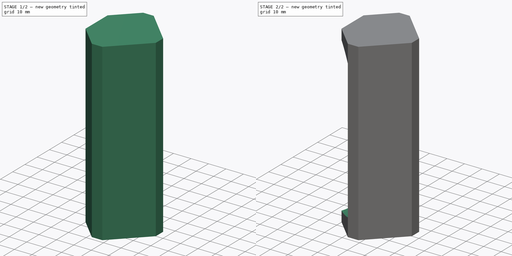
[diagram: build sequence overview — one tinted view per stage of 2, left to right]
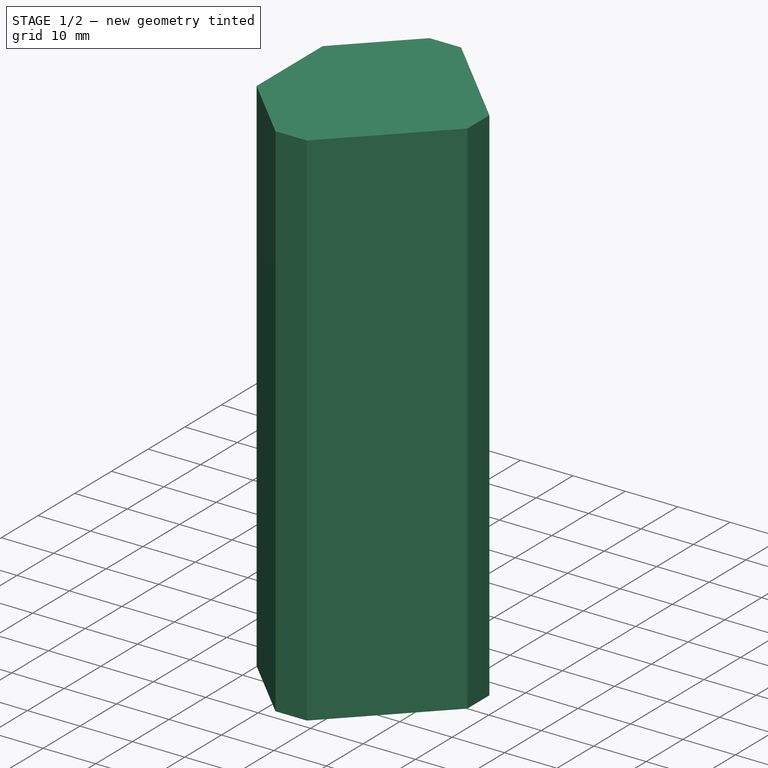
[diagram: stage 1 of 2 — iso view after this stage's code; geometry added in this stage tinted green]
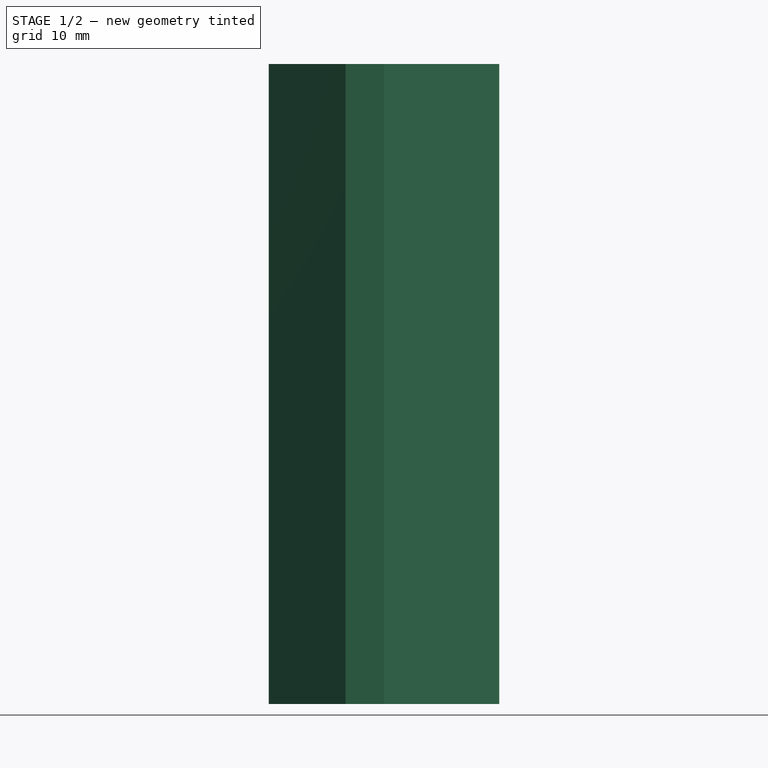
[diagram: stage 1 of 2 — front view after this stage's code; geometry added in this stage tinted green]
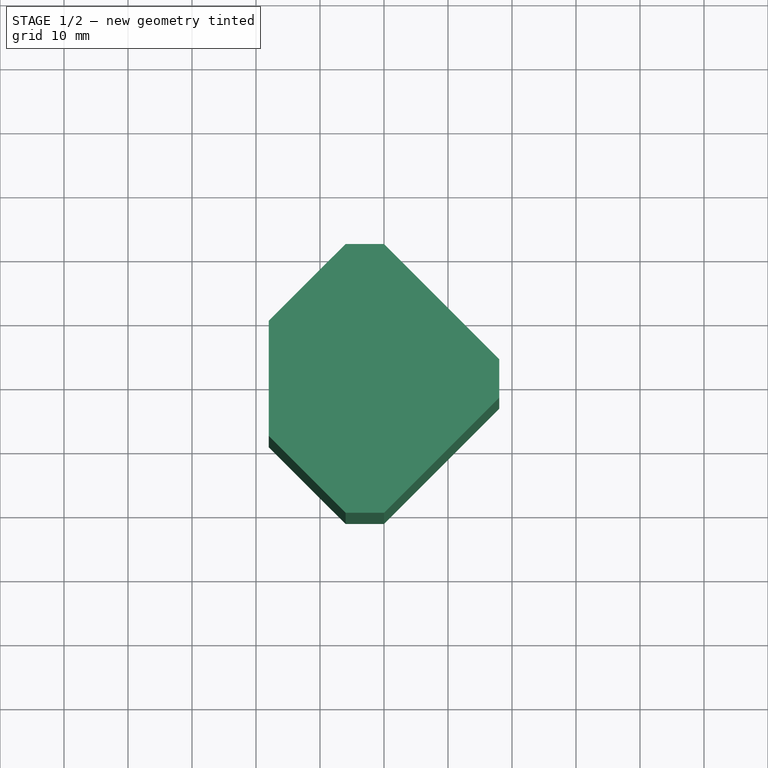
[diagram: stage 1 of 2 — top view after this stage's code; geometry added in this stage tinted green]
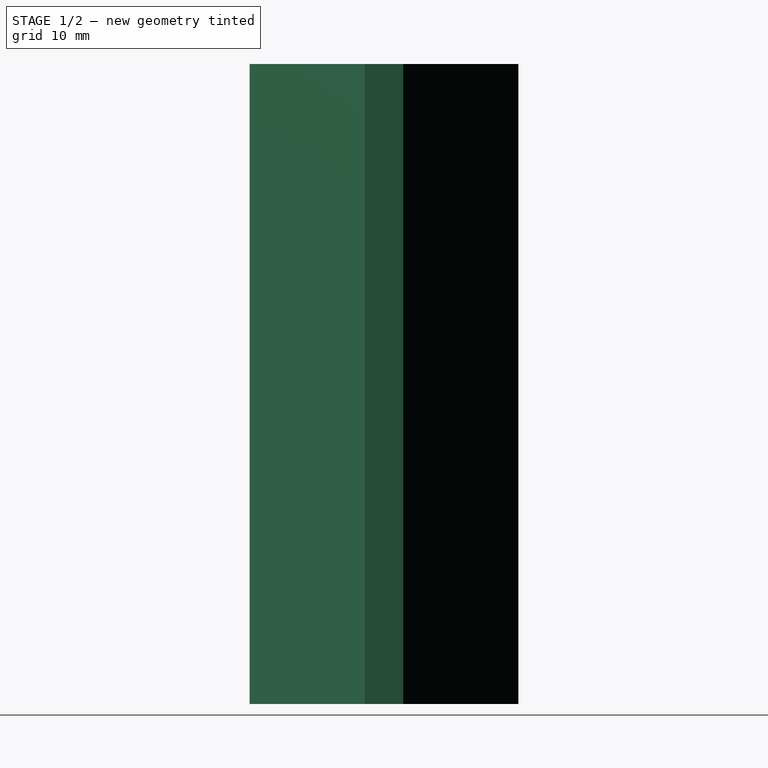
[diagram: stage 1 of 2 — right view after this stage's code; geometry added in this stage tinted green]
FCSTD DOCUMENT  (FreeCAD 0.18.4R)
Label: part18
License: All rights reserved
LicenseURL: http://en.wikipedia.org/wiki/All_rights_reserved
objects: Sketcher::SketchObject×2, PartDesign::Pad×1, PartDesign::Hole×1, PartDesign::Body×1
note: 7 computed .brp shape members not serialized (recipe doc carries the construction recipe); baked Part::Feature solids carry a one-line shape summary decoded from their .brp

FEATURE [Sketcher::SketchObject] Sketch
  MapMode = 5
  Support = -> [XY_Plane]
  sketch-geometry (8):
    g0: LineSegment StartX=-18 StartY=9 StartZ=0 EndX=-18 EndY=-9 EndZ=0
    g1: LineSegment StartX=-18 StartY=-9 StartZ=0 EndX=-6 EndY=-21 EndZ=0
    g2: LineSegment StartX=-6 StartY=-21 StartZ=0 EndX=0 EndY=-21 EndZ=0
    g3: LineSegment StartX=0 StartY=-21 StartZ=0 EndX=18 EndY=-3 EndZ=0
    g4: LineSegment StartX=18 StartY=-3 StartZ=0 EndX=18 EndY=3 EndZ=0
    g5: LineSegment StartX=18 StartY=3 StartZ=0 EndX=0 EndY=21 EndZ=0
    g6: LineSegment StartX=0 StartY=21 StartZ=0 EndX=-6 EndY=21 EndZ=0
    g7: LineSegment StartX=-6 StartY=21 StartZ=0 EndX=-18 EndY=9 EndZ=0
  constraints (20):
    c: Coincident(g0,g1)
    c: Coincident(g1,g2)
    c: Coincident(g2,g3)
    c: Coincident(g3,g4)
    c: Coincident(g4,g5)
    c: Coincident(g5,g6)
    c: Coincident(g6,g7)
    c: Coincident(g7,g0)
    c: Horizontal(g2)
    c: Symmetric(g0,g0,g-1)
    c: Symmetric(g4,g3,g-1)
    c: Symmetric(g5,g2,g-1)
    c: Symmetric(g6,g1,g-1)
    c: PointOnObject(g5,g-2)
    c: Equal(g6,g4)
    c: Angle(g5,g4) = 2.35619
    c: Angle(g0,g7) = 2.35619
    c: DistanceY(g4,g4) = 6
    c: DistanceY(g0,g0) = 18
    c: DistanceY(g2,g5) = 42
FEATURE [PartDesign::Pad] Pad
  Length = 100
  Length2 = 100
  Profile = -> Sketch
  Reversed = true
  Type = 0
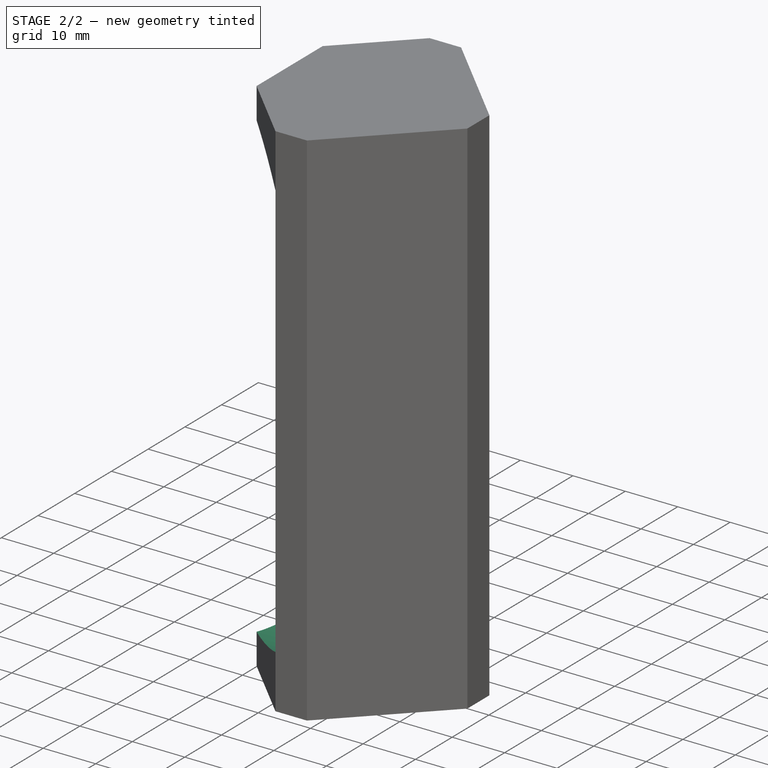
[diagram: stage 2 of 2 — iso view after this stage's code; geometry added in this stage tinted green]
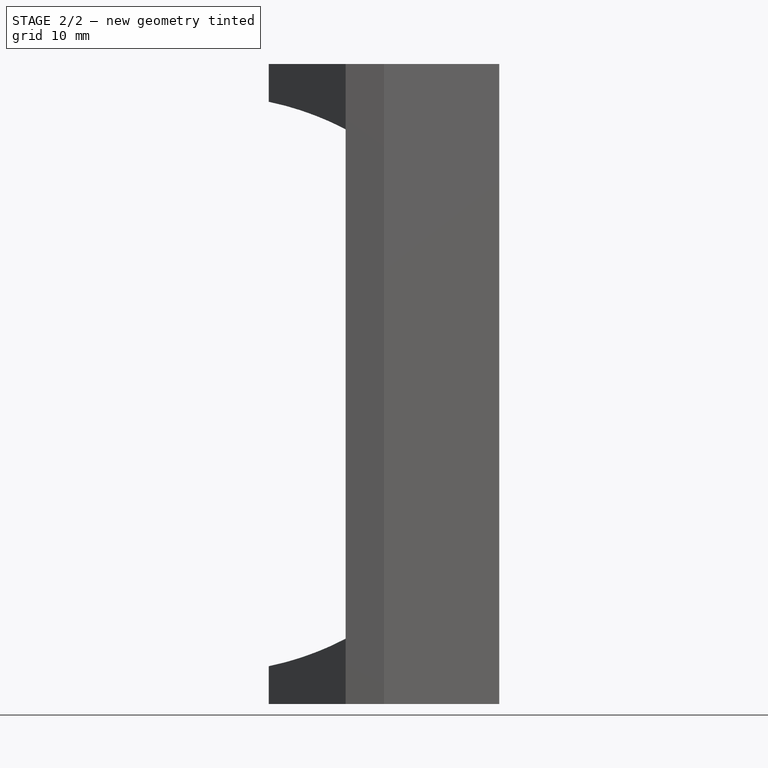
[diagram: stage 2 of 2 — front view after this stage's code; geometry added in this stage tinted green]
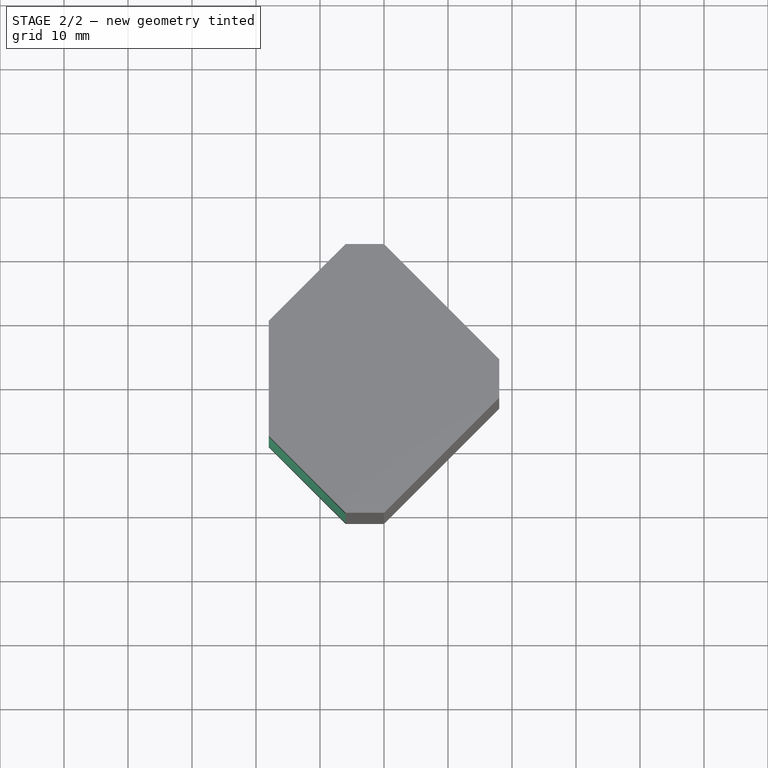
[diagram: stage 2 of 2 — top view after this stage's code; geometry added in this stage tinted green]
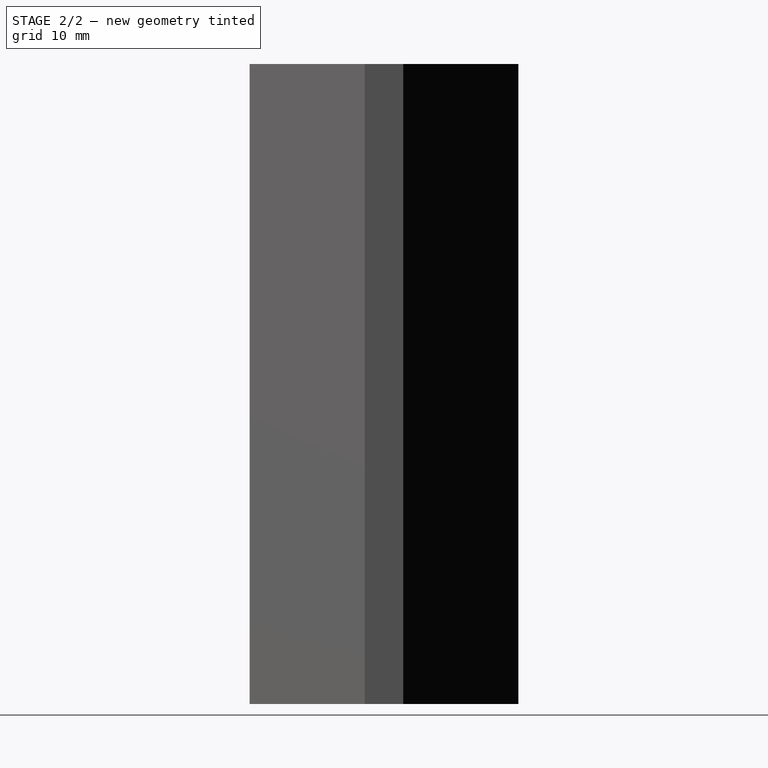
[diagram: stage 2 of 2 — right view after this stage's code; geometry added in this stage tinted green]
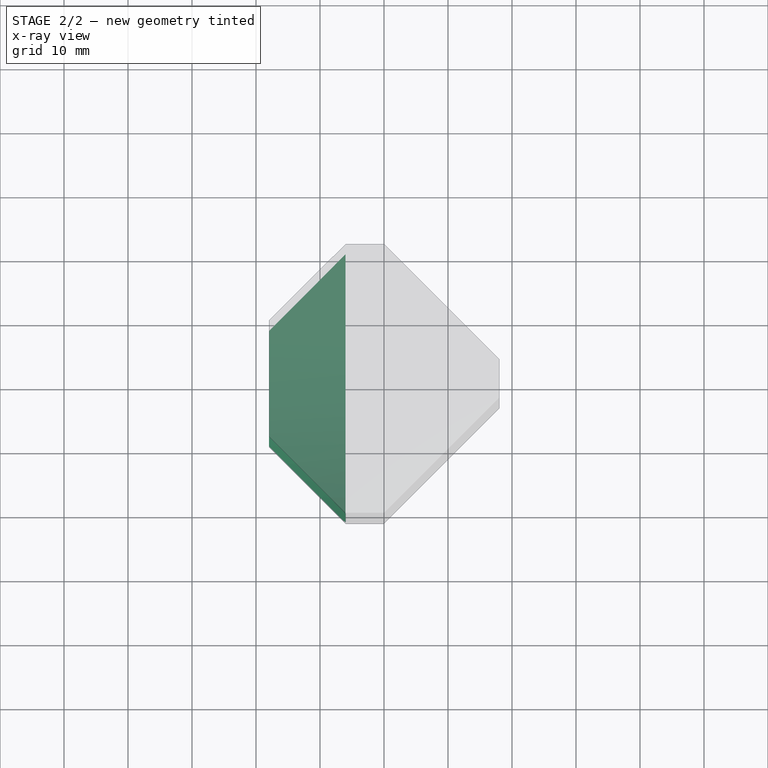
[diagram: stage 2 of 2 — x-ray composite at the top view; earlier geometry ghosted, this stage's added geometry solid]
FEATURE [Sketcher::SketchObject] Sketch001
  MapMode = 5
  Placement = pos=(-18,0,0) rot=(0.57735,-0.57735,-0.57735;2.0944rad)
  Support = -> [Pad]
  sketch-geometry (1):
    g0: Circle CenterX=0 CenterY=-50 CenterZ=0 NormalX=0 NormalY=0 NormalZ=1 AngleXU=0 Radius=45
  constraints (2):
    c: PointOnObject(g0,g-2)
    c: DistanceY(g0,g-1) = 50
FEATURE [PartDesign::Hole] Hole
  BaseFeature = -> Pad
  Depth = 12
  DepthType = 0
  Diameter = 90
  DrillPoint = 0
  DrillPointAngle = 118
  HoleCutCountersinkAngle = 90
  HoleCutDepth = 0
  HoleCutDiameter = 0
  HoleCutType = 0
  ModelActualThread = false
  Profile = -> Sketch001
  Tapered = false
  TaperedAngle = 90
  ThreadAngle = 0
  ThreadClass = 0
  ThreadCutOffInner = 0
  ThreadCutOffOuter = 0
  ThreadDirection = 0
  ThreadFit = 0
  ThreadPitch = 0
  ThreadSize = 0
  ThreadType = 0
  Threaded = false
FEATURE [PartDesign::Body] Body
  Group = -> [Sketch,Pad,Sketch001,Hole]
  Origin = -> Origin
  Tip = -> Hole
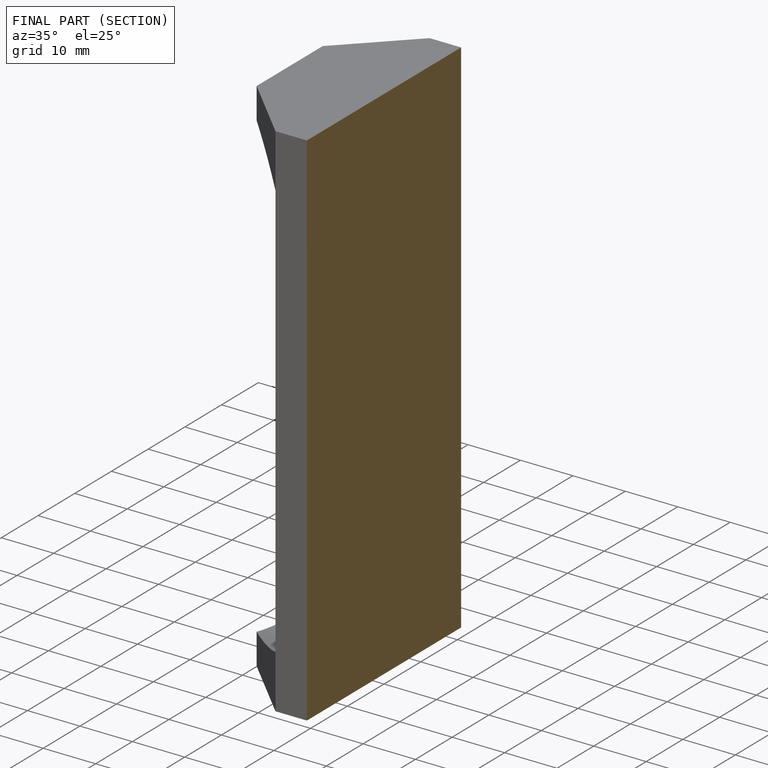
[diagram: finished part — half-section view (interior)]
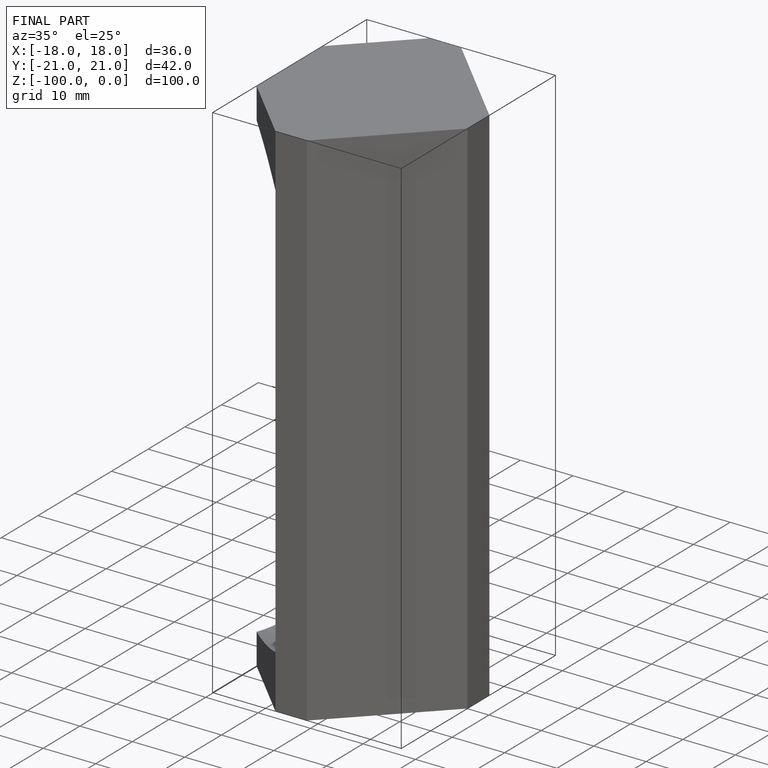
[diagram: finished part — iso view with bounding-box wireframe]
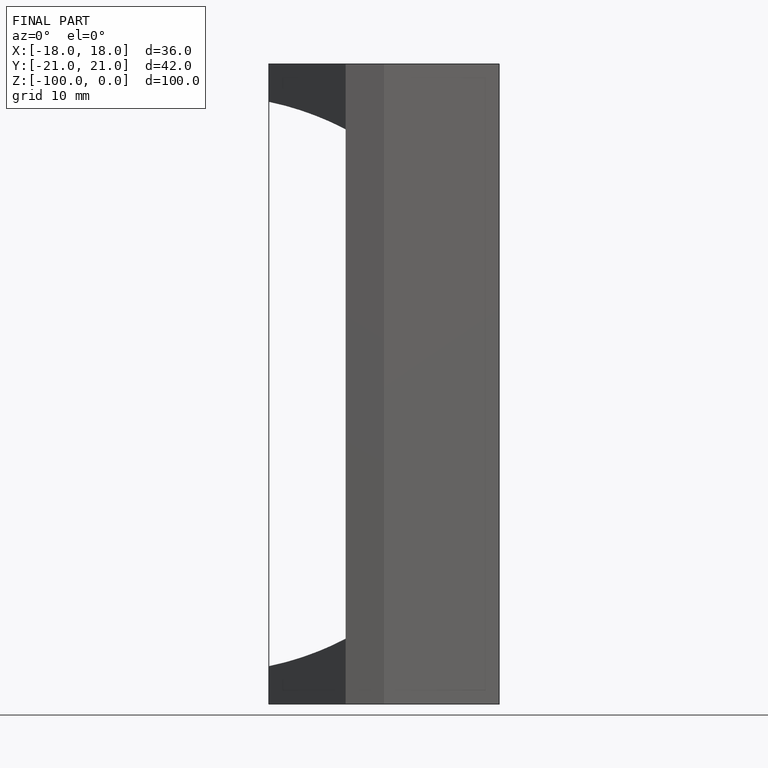
[diagram: finished part — front view with bounding-box wireframe]
